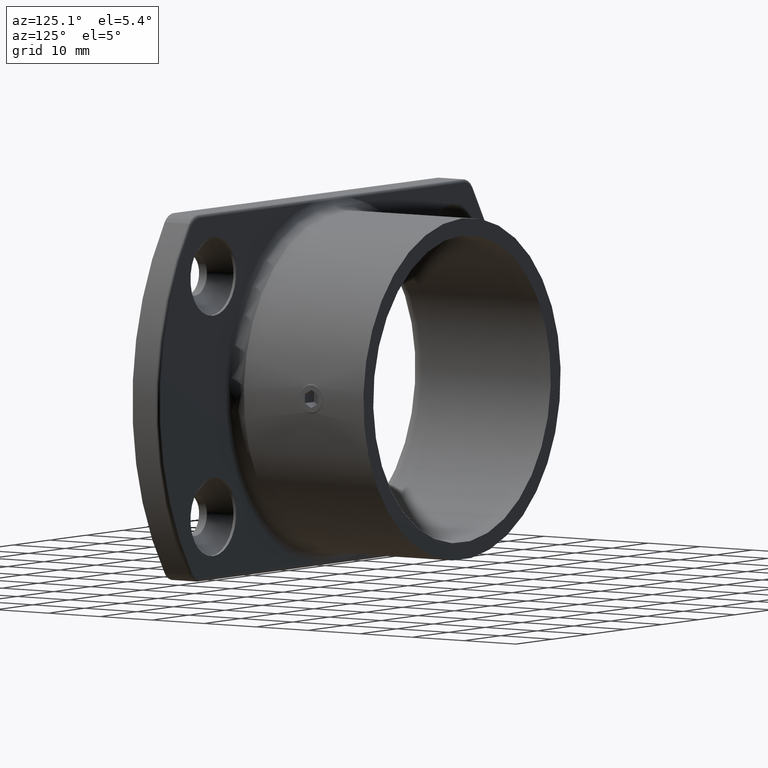
[diagram: clean part render]
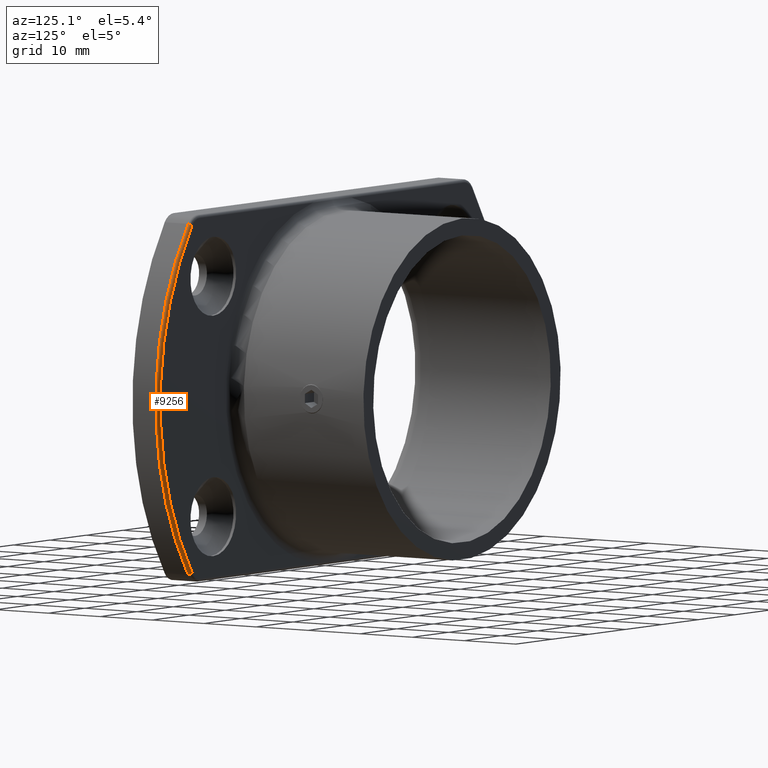
[diagram: same view with one face highlighted and labeled with its STEP entity id]
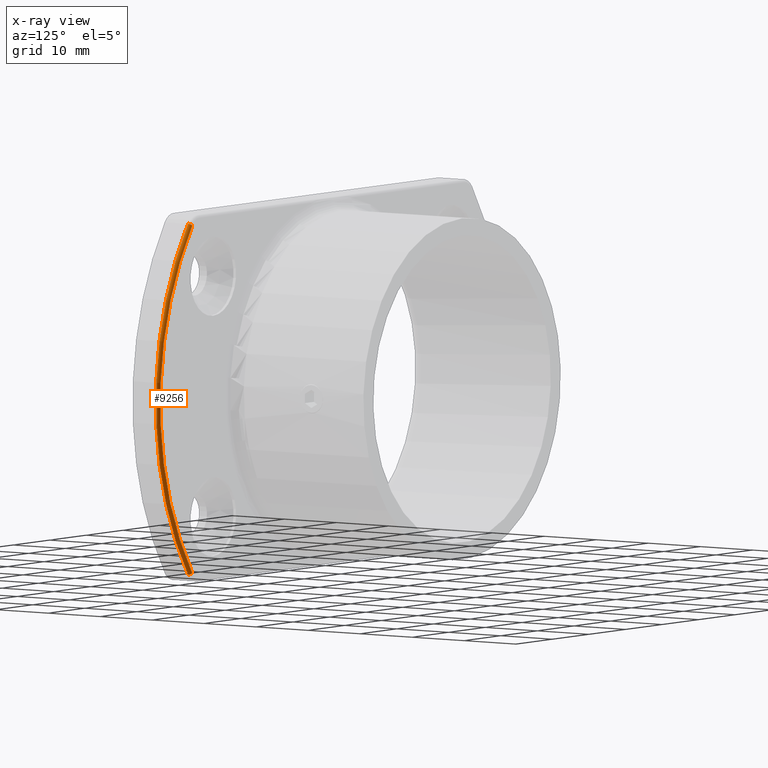
[diagram: x-ray of the same camera — body ghosted, the highlighted face saturated]
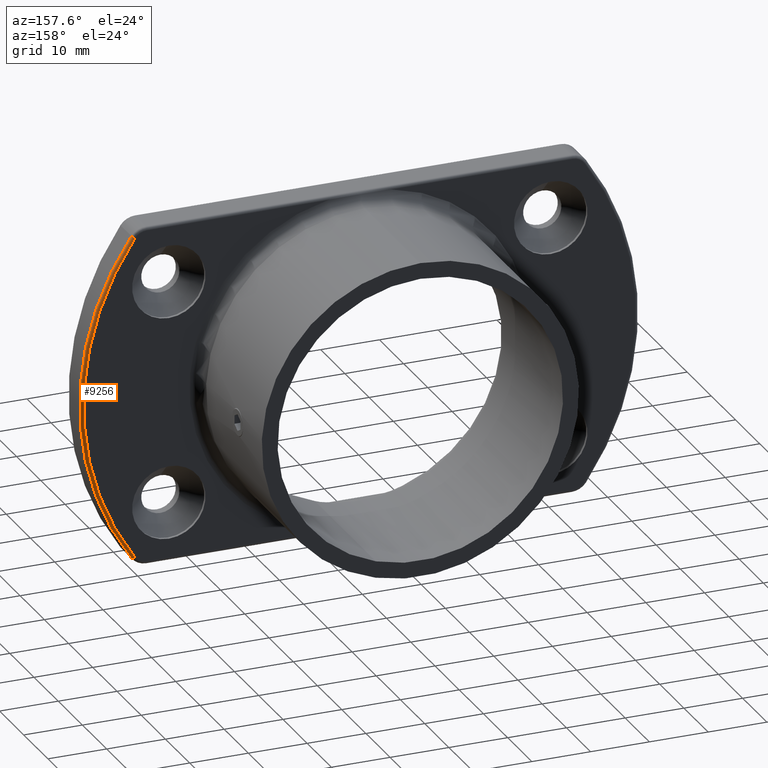
[diagram: same view with one face highlighted and labeled with its STEP entity id]
A machine part, auxiliary view. The second image highlights one B-rep face of the part: STEP entity #9256.
The next image is the same camera in x-ray: the body ghosted, the highlighted face saturated — about 0% of this face is hidden behind the body in this view.
A second angle (auxiliary view) of the same face is appended — the face is thin or edge-on in the first view.
In plain terms, the highlighted toroidal blend (fillet) surface has major radius 47.5 mm and minor (blend) radius 0.5 mm.
Its self-contained STEP definition (entity closure, byte-faithful):
#103 = ORIENTED_EDGE ( 'NONE', *, *, #4850, .T. ) ;
#292 = DIRECTION ( 'NONE',  ( 1.775381057445013708E-15, 0.000000000000000000, 1.000000000000000000 ) ) ;
#616 = CIRCLE ( 'NONE', #12104, 0.4999999999999991673 ) ;
#679 = AXIS2_PLACEMENT_3D ( 'NONE', #5070, #1803, #13419 ) ;
#746 = EDGE_LOOP ( 'NONE', ( #4568, #4957, #3467, #103 ) ) ;
#1803 = DIRECTION ( 'NONE',  ( 0.000000000000000000, 1.000000000000000000, 0.000000000000000000 ) ) ;
#2117 = DIRECTION ( 'NONE',  ( -0.8161941187647522300, 0.000000000000000000, -0.5777777777777798329 ) ) ;
#3071 = DIRECTION ( 'NONE',  ( 0.000000000000000000, 0.000000000000000000, 1.000000000000000000 ) ) ;
#3467 = ORIENTED_EDGE ( 'NONE', *, *, #5489, .F. ) ;
#4128 = AXIS2_PLACEMENT_3D ( 'NONE', #11470, #8362, #2117 ) ;
#4568 = ORIENTED_EDGE ( 'NONE', *, *, #12037, .F. ) ;
#4649 = TOROIDAL_SURFACE ( 'NONE', #679, 47.49999999999999289, 0.5000000000000000000 ) ;
#4850 = EDGE_CURVE ( 'NONE', #12168, #9849, #9288, .T. ) ;
#4957 = ORIENTED_EDGE ( 'NONE', *, *, #8972, .T. ) ;
#5070 = CARTESIAN_POINT ( 'NONE',  ( -0.4999999999999865663, 4.500000000000000888, -2.081668171171956783E-14 ) ) ;
#5123 = VERTEX_POINT ( 'NONE', #6532 ) ;
#5489 = EDGE_CURVE ( 'NONE', #12168, #5123, #9583, .T. ) ;
#6445 = CARTESIAN_POINT ( 'NONE',  ( 38.67731770070819408, 4.500000000000000888, -27.73333333333333783 ) ) ;
#6532 = CARTESIAN_POINT ( 'NONE',  ( 38.26922064132581625, 5.000000000000000000, -27.44444444444445352 ) ) ;
#7115 = FACE_OUTER_BOUND ( 'NONE', #746, .T. ) ;
#7650 = DIRECTION ( 'NONE',  ( -0.000000000000000000, -1.000000000000000000, -0.000000000000000000 ) ) ;
#7699 = AXIS2_PLACEMENT_3D ( 'NONE', #9223, #13412, #3071 ) ;
#8362 = DIRECTION ( 'NONE',  ( 0.5777777777777799439, 0.000000000000000000, -0.8161941187647523410 ) ) ;
#8704 = CARTESIAN_POINT ( 'NONE',  ( -0.4999999999999865663, 4.500000000000000888, -2.081668171171956783E-14 ) ) ;
#8972 = EDGE_CURVE ( 'NONE', #9037, #5123, #616, .T. ) ;
#9037 = VERTEX_POINT ( 'NONE', #6445 ) ;
#9223 = CARTESIAN_POINT ( 'NONE',  ( -0.4999999999999865663, 5.000000000000000000, -2.081668171171956783E-14 ) ) ;
#9256 = ADVANCED_FACE ( 'NONE', ( #7115 ), #4649, .T. ) ;
#9288 = CIRCLE ( 'NONE', #4128, 0.5000000000000012212 ) ;
#9337 = CARTESIAN_POINT ( 'NONE',  ( 38.26922064132581625, 4.500000000000000888, -27.44444444444445352 ) ) ;
#9383 = DIRECTION ( 'NONE',  ( 0.5777777777777752810, -0.000000000000000000, 0.8161941187647556717 ) ) ;
#9583 = CIRCLE ( 'NONE', #7699, 47.49999999999999289 ) ;
#9787 = AXIS2_PLACEMENT_3D ( 'NONE', #8704, #7650, #292 ) ;
#9849 = VERTEX_POINT ( 'NONE', #9979 ) ;
#9979 = CARTESIAN_POINT ( 'NONE',  ( 38.67731770070815855, 4.500000000000000888, 27.73333333333333783 ) ) ;
#10095 = CIRCLE ( 'NONE', #9787, 47.99999999999999289 ) ;
#10436 = DIRECTION ( 'NONE',  ( 0.8161941187647555607, 0.000000000000000000, -0.5777777777777752810 ) ) ;
#11470 = CARTESIAN_POINT ( 'NONE',  ( 38.26922064132578072, 4.500000000000000888, 27.44444444444444997 ) ) ;
#11992 = CARTESIAN_POINT ( 'NONE',  ( 38.26922064132578072, 5.000000000000000000, 27.44444444444444997 ) ) ;
#12037 = EDGE_CURVE ( 'NONE', #9037, #9849, #10095, .T. ) ;
#12104 = AXIS2_PLACEMENT_3D ( 'NONE', #9337, #9383, #10436 ) ;
#12168 = VERTEX_POINT ( 'NONE', #11992 ) ;
#13412 = DIRECTION ( 'NONE',  ( 0.000000000000000000, 1.000000000000000000, 0.000000000000000000 ) ) ;
#13419 = DIRECTION ( 'NONE',  ( 0.000000000000000000, 0.000000000000000000, 1.000000000000000000 ) ) ;